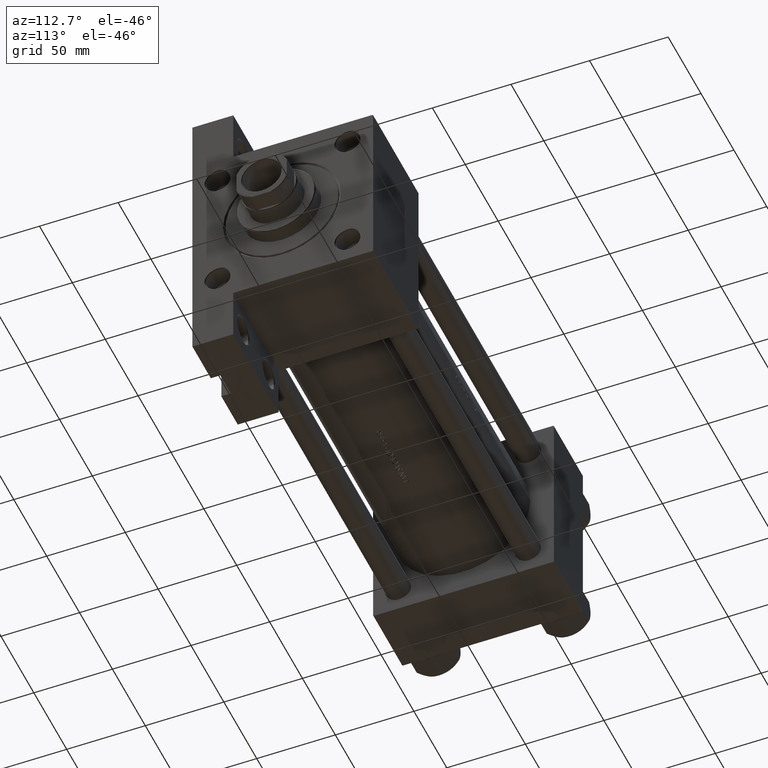
[diagram: clean part render]
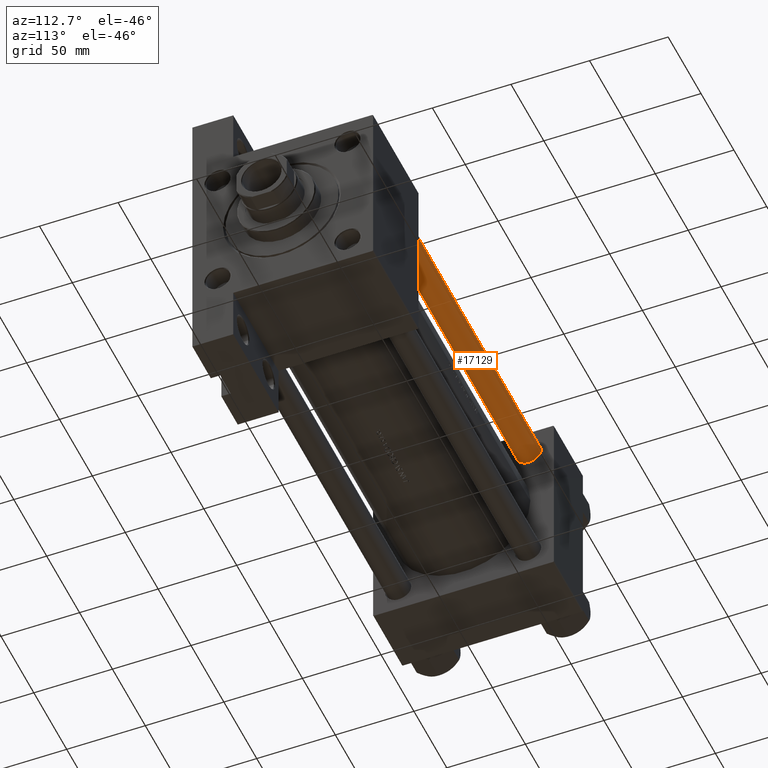
[diagram: same view with one face highlighted and labeled with its STEP entity id]
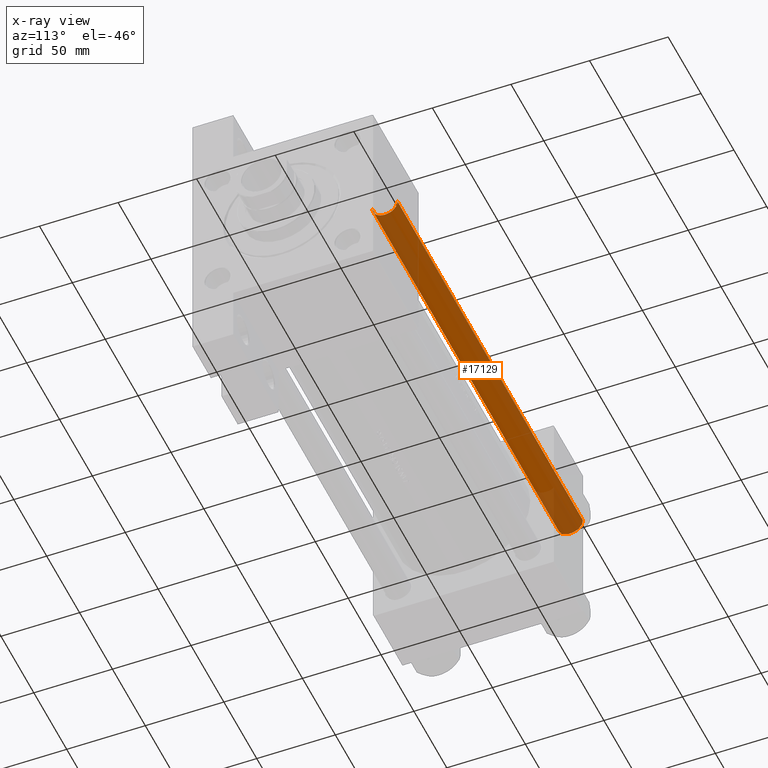
[diagram: x-ray of the same camera — body ghosted, the highlighted face saturated]
A machine part, auxiliary view. The second image highlights one B-rep face of the part: STEP entity #17129.
The next image is the same camera in x-ray: the body ghosted, the highlighted face saturated — about 20% of this face is hidden behind the body in this view.
In plain terms, the highlighted cylindrical surface (edge-blend (fillet) strip) has radius 8 mm, axis along (1, -0, 0).
Its self-contained STEP definition (entity closure, byte-faithful):
#200 = CARTESIAN_POINT ( 'NONE',  ( -8.000000000000000000, 0.000000000000000000, 283.0000000000000000 ) ) ;
#2275 = CARTESIAN_POINT ( 'NONE',  ( 8.000000000000000000, 9.797174393178825657E-16, 283.0000000000000000 ) ) ;
#5711 = VERTEX_POINT ( 'NONE', #34144 ) ;
#5833 = EDGE_CURVE ( 'NONE', #33803, #5711, #7047, .T. ) ;
#6943 = FACE_OUTER_BOUND ( 'NONE', #25654, .T. ) ;
#7047 = CIRCLE ( 'NONE', #13284, 8.000000000000000000 ) ;
#7176 = DIRECTION ( 'NONE',  ( -0.000000000000000000, -0.000000000000000000, -1.000000000000000000 ) ) ;
#7761 = DIRECTION ( 'NONE',  ( -0.000000000000000000, -0.000000000000000000, 1.000000000000000000 ) ) ;
#8927 = CARTESIAN_POINT ( 'NONE',  ( 8.000000000000000000, 9.797174393178825657E-16, 0.5000000000000004441 ) ) ;
#9562 = VECTOR ( 'NONE', #22443, 1000.000000000000000 ) ;
#10932 = DIRECTION ( 'NONE',  ( -0.000000000000000000, -0.000000000000000000, -1.000000000000000000 ) ) ;
#12734 = ORIENTED_EDGE ( 'NONE', *, *, #35013, .T. ) ;
#13284 = AXIS2_PLACEMENT_3D ( 'NONE', #44961, #7761, #45209 ) ;
#16678 = VECTOR ( 'NONE', #10932, 1000.000000000000000 ) ;
#17129 = ADVANCED_FACE ( 'NONE', ( #6943 ), #40501, .T. ) ;
#17889 = CARTESIAN_POINT ( 'NONE',  ( 0.000000000000000000, 0.000000000000000000, 283.0000000000000000 ) ) ;
#17964 = ORIENTED_EDGE ( 'NONE', *, *, #47609, .T. ) ;
#22020 = DIRECTION ( 'NONE',  ( -1.000000000000000000, 0.000000000000000000, 0.000000000000000000 ) ) ;
#22443 = DIRECTION ( 'NONE',  ( -0.000000000000000000, -0.000000000000000000, -1.000000000000000000 ) ) ;
#22640 = CARTESIAN_POINT ( 'NONE',  ( 8.000000000000000000, 9.797174393178825657E-16, 282.5000000000000000 ) ) ;
#24569 = AXIS2_PLACEMENT_3D ( 'NONE', #31623, #42564, #45981 ) ;
#25654 = EDGE_LOOP ( 'NONE', ( #17964, #12734, #34492, #38756 ) ) ;
#31623 = CARTESIAN_POINT ( 'NONE',  ( 0.000000000000000000, 0.000000000000000000, 282.5000000000000000 ) ) ;
#33803 = VERTEX_POINT ( 'NONE', #8927 ) ;
#34144 = CARTESIAN_POINT ( 'NONE',  ( -8.000000000000000000, 0.000000000000000000, 0.5000000000000004441 ) ) ;
#34492 = ORIENTED_EDGE ( 'NONE', *, *, #5833, .T. ) ;
#35013 = EDGE_CURVE ( 'NONE', #46840, #33803, #35622, .T. ) ;
#35086 = VERTEX_POINT ( 'NONE', #42121 ) ;
#35622 = LINE ( 'NONE', #2275, #9562 ) ;
#38756 = ORIENTED_EDGE ( 'NONE', *, *, #42433, .F. ) ;
#40501 = CYLINDRICAL_SURFACE ( 'NONE', #43139, 8.000000000000000000 ) ;
#42121 = CARTESIAN_POINT ( 'NONE',  ( -8.000000000000000000, 0.000000000000000000, 282.5000000000000000 ) ) ;
#42433 = EDGE_CURVE ( 'NONE', #35086, #5711, #44240, .T. ) ;
#42564 = DIRECTION ( 'NONE',  ( 0.000000000000000000, 0.000000000000000000, -1.000000000000000000 ) ) ;
#43139 = AXIS2_PLACEMENT_3D ( 'NONE', #17889, #7176, #22020 ) ;
#44240 = LINE ( 'NONE', #200, #16678 ) ;
#44961 = CARTESIAN_POINT ( 'NONE',  ( 0.000000000000000000, 0.000000000000000000, 0.5000000000000004441 ) ) ;
#45209 = DIRECTION ( 'NONE',  ( 1.000000000000000000, 0.000000000000000000, 0.000000000000000000 ) ) ;
#45544 = CIRCLE ( 'NONE', #24569, 8.000000000000000000 ) ;
#45981 = DIRECTION ( 'NONE',  ( 1.000000000000000000, 0.000000000000000000, 0.000000000000000000 ) ) ;
#46840 = VERTEX_POINT ( 'NONE', #22640 ) ;
#47609 = EDGE_CURVE ( 'NONE', #35086, #46840, #45544, .T. ) ;